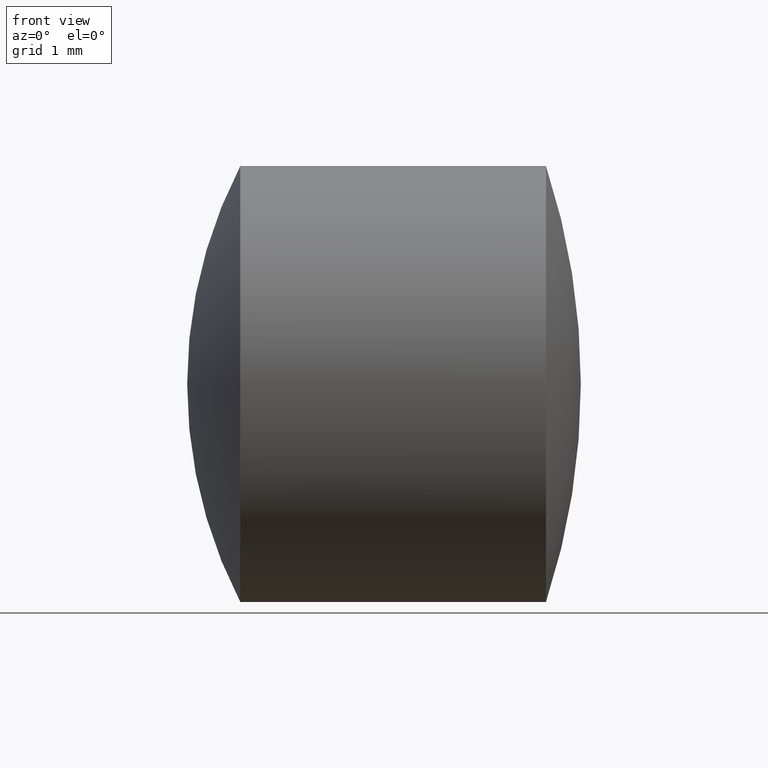
[diagram: clean part render]
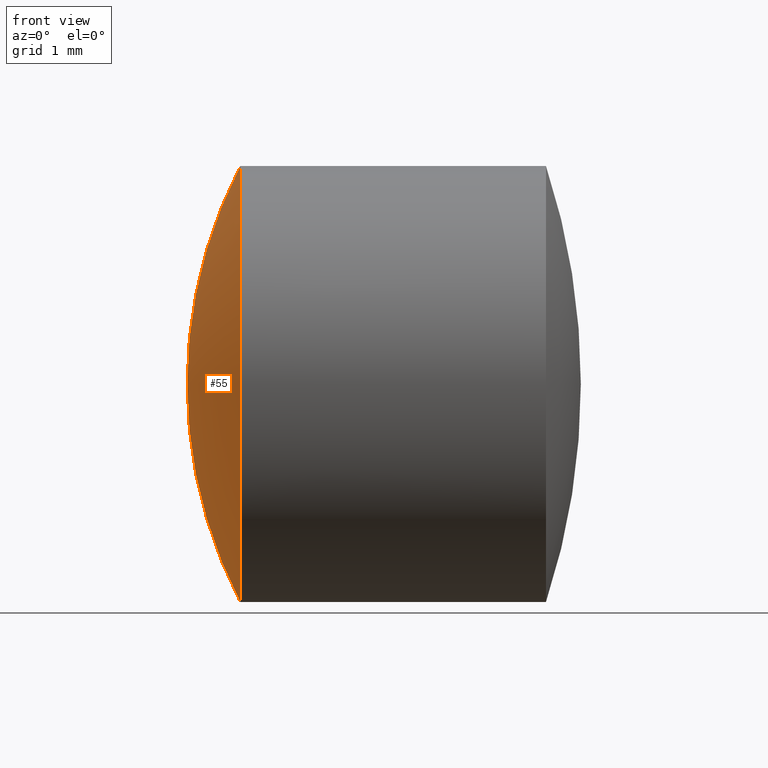
[diagram: same view with one face highlighted and labeled with its STEP entity id]
A machine part, front view. The second image highlights one B-rep face of the part: STEP entity #55.
In plain terms, the highlighted spherical surface has radius 6.848 mm.
Its self-contained STEP definition (entity closure, byte-faithful):
#17 = VERTEX_POINT ( 'NONE', #340 ) ;
#31 = AXIS2_PLACEMENT_3D ( 'NONE', #166, #226, #32 ) ;
#32 = DIRECTION ( 'NONE',  ( 0.0000000000000000000, -1.224646799147353200E-016, 1.000000000000000000 ) ) ;
#39 = CIRCLE ( 'NONE', #321, 3.149999999999999900 ) ;
#46 = VERTEX_POINT ( 'NONE', #290 ) ;
#48 = EDGE_CURVE ( 'NONE', #17, #46, #182, .T. ) ;
#55 = ADVANCED_FACE ( 'NONE', ( #275 ), #265, .T. ) ;
#65 = EDGE_CURVE ( 'NONE', #148, #17, #39, .T. ) ;
#70 = DIRECTION ( 'NONE',  ( 0.0000000000000000000, 0.0000000000000000000, -1.000000000000000000 ) ) ;
#74 = CARTESIAN_POINT ( 'NONE',  ( 2.568094163968829100, 3.857637417314162200E-016, -3.149999999999999900 ) ) ;
#93 = ORIENTED_EDGE ( 'NONE', *, *, #65, .T. ) ;
#114 = CIRCLE ( 'NONE', #31, 6.847999999999999900 ) ;
#127 = DIRECTION ( 'NONE',  ( -1.000000000000000000, -0.0000000000000000000, -0.0000000000000000000 ) ) ;
#148 = VERTEX_POINT ( 'NONE', #74 ) ;
#165 = ORIENTED_EDGE ( 'NONE', *, *, #48, .T. ) ;
#166 = CARTESIAN_POINT ( 'NONE',  ( 8.648604339932685300, 0.0000000000000000000, -5.419542352614500500E-019 ) ) ;
#182 = CIRCLE ( 'NONE', #285, 6.847999999999999900 ) ;
#202 = DIRECTION ( 'NONE',  ( 0.0000000000000000000, -1.000000000000000000, 0.0000000000000000000 ) ) ;
#226 = DIRECTION ( 'NONE',  ( -0.0000000000000000000, 1.000000000000000000, 1.224646799147353200E-016 ) ) ;
#233 = CARTESIAN_POINT ( 'NONE',  ( 8.648604339932685300, 0.0000000000000000000, -5.419542352614500500E-019 ) ) ;
#246 = ORIENTED_EDGE ( 'NONE', *, *, #256, .F. ) ;
#256 = EDGE_CURVE ( 'NONE', #148, #46, #114, .T. ) ;
#264 = DIRECTION ( 'NONE',  ( 0.0000000000000000000, 1.000000000000000000, 0.0000000000000000000 ) ) ;
#265 = SPHERICAL_SURFACE ( 'NONE', #337, 6.847999999999999900 ) ;
#266 = DIRECTION ( 'NONE',  ( 0.0000000000000000000, 0.0000000000000000000, 1.000000000000000000 ) ) ;
#275 = FACE_OUTER_BOUND ( 'NONE', #322, .T. ) ;
#285 = AXIS2_PLACEMENT_3D ( 'NONE', #233, #202, #70 ) ;
#290 = CARTESIAN_POINT ( 'NONE',  ( 1.800604339932685200, 0.0000000000000000000, 4.187771097927922700E-016 ) ) ;
#293 = CARTESIAN_POINT ( 'NONE',  ( 2.568094163968829100, 0.0000000000000000000, 0.0000000000000000000 ) ) ;
#314 = CARTESIAN_POINT ( 'NONE',  ( 8.648604339932685300, 0.0000000000000000000, -5.419542352614500500E-019 ) ) ;
#318 = DIRECTION ( 'NONE',  ( 0.0000000000000000000, 0.0000000000000000000, 1.000000000000000000 ) ) ;
#321 = AXIS2_PLACEMENT_3D ( 'NONE', #293, #127, #318 ) ;
#322 = EDGE_LOOP ( 'NONE', ( #246, #93, #165 ) ) ;
#337 = AXIS2_PLACEMENT_3D ( 'NONE', #314, #264, #266 ) ;
#340 = CARTESIAN_POINT ( 'NONE',  ( 2.568094163968829100, 0.0000000000000000000, 3.149999999999999900 ) ) ;